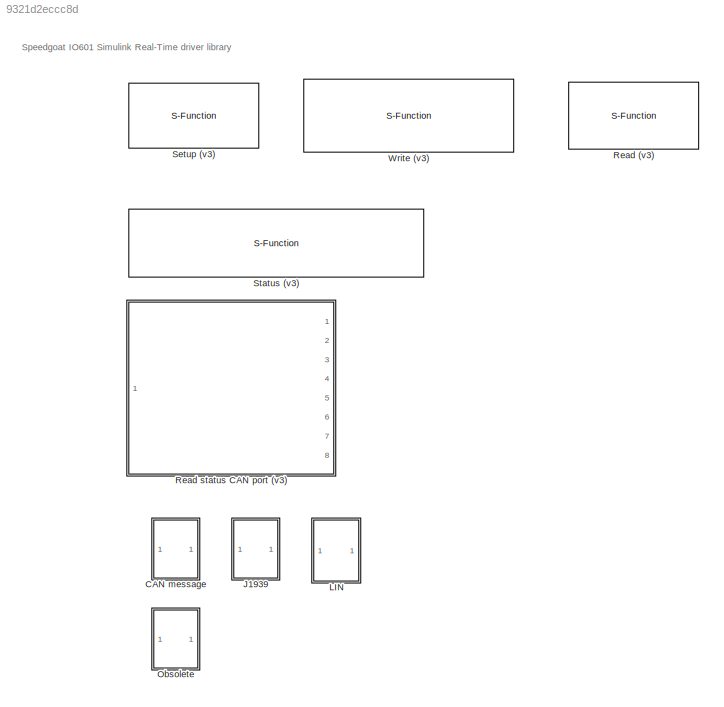
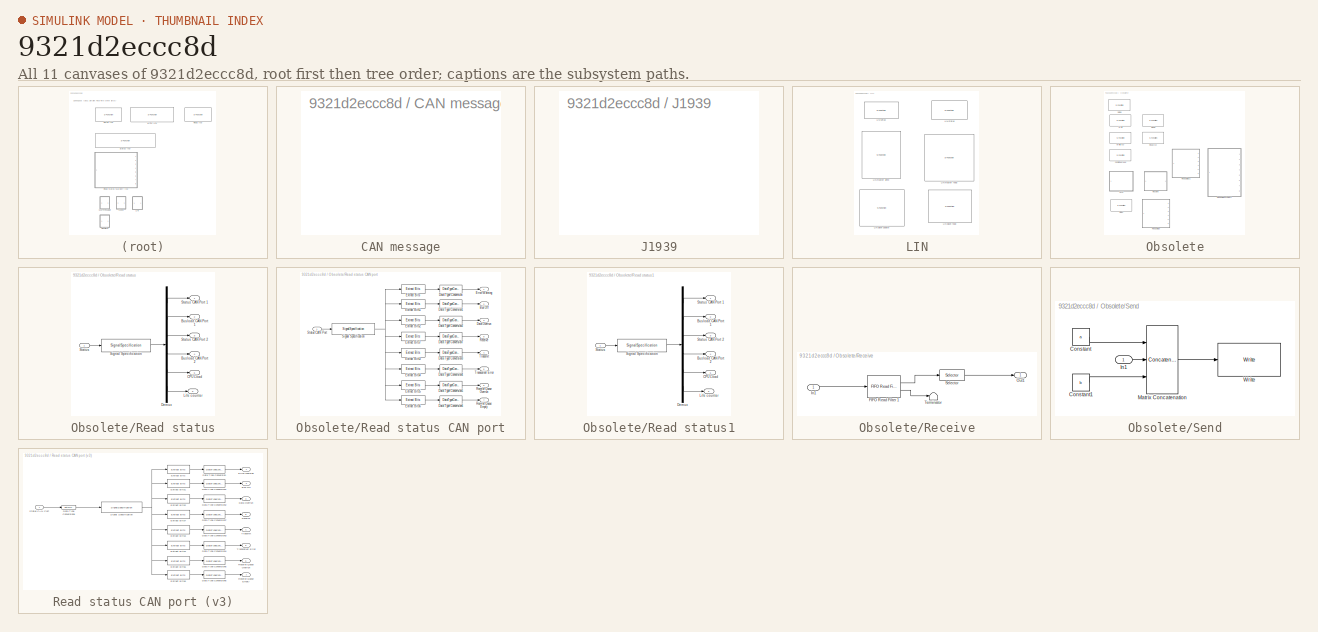
[diagram: thumbnail index - all 11 canvases of the model, root first then tree order]
MODEL slx_9321d2eccc8d
KIND library
BLOCK [SubSystem] CAN message
  FunctionWithSeparateData = off
  MaskHideContents = off
  MinAlgLoopOccurrences = off
  Opaque = off
  OpenFcn = canmsglib
  Ports = []
  PropExecContextOutsideSubsystem = off
  RTWSystemCode = Auto
  RequestExecContextInheritance = off
BLOCK [SubSystem] J1939
  FunctionWithSeparateData = off
  MaskHideContents = off
  MinAlgLoopOccurrences = off
  Opaque = off
  OpenFcn = xpcJ1939lib
  Ports = []
  PropExecContextOutsideSubsystem = off
  RTWSystemCode = Auto
  RequestExecContextInheritance = off
BLOCK [SubSystem] LIN
  FunctionWithSeparateData = off
  MaskHideContents = off
  MinAlgLoopOccurrences = off
  Opaque = off
  Ports = []
  PropExecContextOutsideSubsystem = off
  RTWSystemCode = Auto
  RequestExecContextInheritance = off
BLOCK [S-Function] LIN/LIN master read
  EnableBusSupport = off
  FunctionName = sg_IO601_linmasterread_s
  InitFcn = sg_IO601_linmasterread_m(1);
  Parameters = id, nbMessages, ts, pciSlot
  Ports = [2, 14]
BLOCK [S-Function] LIN/LIN master write
  EnableBusSupport = off
  FunctionName = sg_IO601_linmasterwrite_s
  InitFcn = sg_IO601_linmasterwrite_m(1);
  Parameters = id, nbMessages, ts, pciSlot
  Ports = [11]
BLOCK [S-Function] LIN/LIN setup
  EnableBusSupport = off
  FunctionName = sg_IO601_setuplin_s
  InitFcn = sg_IO601_setuplin_m(1);
  Parameters = id, baudRate, role, pciSlot
  Ports = []
BLOCK [S-Function] LIN/LIN slave read
  EnableBusSupport = off
  FunctionName = sg_IO601_linslaveread_s
  InitFcn = sg_IO601_linslaveread_m(1);
  Parameters = id, nbMessages, ts, pciSlot
  Ports = [0, 13]
BLOCK [S-Function] LIN/LIN slave update
  EnableBusSupport = off
  FunctionName = sg_IO601_linslavewrite_s
  InitFcn = sg_IO601_linslavewrite_m(1);
  Parameters = id, nbMessages, ts, pciSlot
  Ports = [10]
BLOCK [S-Function] LIN/LIN status
  EnableBusSupport = off
  FunctionName = sg_IO601_statuslin_s
  InitFcn = sg_IO601_statuslin_m(1);
  Parameters = ts, pciSlot
  Ports = [0, 4]
BLOCK [SubSystem] Obsolete
  FunctionWithSeparateData = off
  MaskHideContents = off
  MinAlgLoopOccurrences = off
  Opaque = off
  Ports = []
  PropExecContextOutsideSubsystem = off
  RTWSystemCode = Auto
  RequestExecContextInheritance = off
BLOCK [S-Function] Obsolete/Combined read
  EnableBusSupport = off
  FunctionName = sg_IO601_cread_s
  InitFcn = sg_IO601_cread_m(1);
  Parameters = id, depth, status, sampletime, pciSlot
  Ports = [0, 1]
BLOCK [S-Function] Obsolete/Read
  EnableBusSupport = off
  FunctionName = sg_IO601_read_s
  InitFcn = sg_IO601_read_m(1);
  Parameters = id, port, depth, status, sampletime, pciSlot
  Ports = [0, 1]
BLOCK [S-Function] Obsolete/Read (v2)
  EnableBusSupport = off
  FunctionName = sg_IO601_read2_s
  InitFcn = sg_IO601_read_m(1);
  Parameters = id, port, depth, outputFormat, status, sampletime, pciSlot
  Ports = [0, 2]
BLOCK [SubSystem] Obsolete/Read status
  FunctionWithSeparateData = off
  MaskHideContents = off
  MinAlgLoopOccurrences = off
  Opaque = off
  Ports = [1, 6]
  PropExecContextOutsideSubsystem = off
  RTWSystemCode = Auto
  RequestExecContextInheritance = off
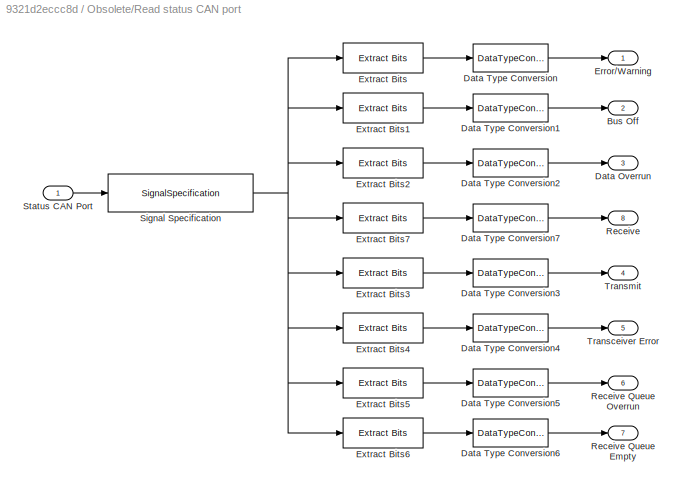
BLOCK [SubSystem] Obsolete/Read status CAN port
  FunctionWithSeparateData = off
  MaskHideContents = off
  MinAlgLoopOccurrences = off
  Opaque = off
  Ports = [1, 8]
  PropExecContextOutsideSubsystem = off
  RTWSystemCode = Auto
  RequestExecContextInheritance = off
BLOCK [Outport] Obsolete/Read status CAN port/Bus Off
  IconDisplay = Port number
  Port = 2
BLOCK [Outport] Obsolete/Read status CAN port/Data Overrun
  IconDisplay = Port number
  Port = 3
BLOCK [DataTypeConversion] Obsolete/Read status CAN port/Data Type Conversion
  OutDataTypeStr = boolean
  RndMeth = Floor
  SaturateOnIntegerOverflow = off
BLOCK [DataTypeConversion] Obsolete/Read status CAN port/Data Type Conversion1
  OutDataTypeStr = boolean
  RndMeth = Floor
  SaturateOnIntegerOverflow = off
BLOCK [DataTypeConversion] Obsolete/Read status CAN port/Data Type Conversion2
  OutDataTypeStr = boolean
  RndMeth = Floor
  SaturateOnIntegerOverflow = off
BLOCK [DataTypeConversion] Obsolete/Read status CAN port/Data Type Conversion3
  OutDataTypeStr = boolean
  RndMeth = Floor
  SaturateOnIntegerOverflow = off
BLOCK [DataTypeConversion] Obsolete/Read status CAN port/Data Type Conversion4
  OutDataTypeStr = boolean
  RndMeth = Floor
  SaturateOnIntegerOverflow = off
BLOCK [DataTypeConversion] Obsolete/Read status CAN port/Data Type Conversion5
  OutDataTypeStr = boolean
  RndMeth = Floor
  SaturateOnIntegerOverflow = off
BLOCK [DataTypeConversion] Obsolete/Read status CAN port/Data Type Conversion6
  OutDataTypeStr = boolean
  RndMeth = Floor
  SaturateOnIntegerOverflow = off
BLOCK [DataTypeConversion] Obsolete/Read status CAN port/Data Type Conversion7
  OutDataTypeStr = boolean
  RndMeth = Floor
  SaturateOnIntegerOverflow = off
BLOCK [Outport] Obsolete/Read status CAN port/Error//Warning
  IconDisplay = Port number
BLOCK [Reference] Obsolete/Read status CAN port/Extract Bits  REF=simulink/Logic and Bit
Operations/Extract Bits
  Ports = [1, 1]
  SourceBlock = simulink/Logic and Bit\nOperations/Extract Bits
  SourceType = Extract Bits
  bitIdxRange = [1]
  bitsToExtract = Range of bits
  numBits = 8
  outScalingMode = Preserve fixed-point scaling
BLOCK [Reference] Obsolete/Read status CAN port/Extract Bits1  REF=simulink/Logic and Bit
Operations/Extract Bits
  Ports = [1, 1]
  SourceBlock = simulink/Logic and Bit\nOperations/Extract Bits
  SourceType = Extract Bits
  bitIdxRange = [2]
  bitsToExtract = Range of bits
  numBits = 8
  outScalingMode = Preserve fixed-point scaling
BLOCK [Reference] Obsolete/Read status CAN port/Extract Bits2  REF=simulink/Logic and Bit
Operations/Extract Bits
  Ports = [1, 1]
  SourceBlock = simulink/Logic and Bit\nOperations/Extract Bits
  SourceType = Extract Bits
  bitIdxRange = [3]
  bitsToExtract = Range of bits
  numBits = 8
  outScalingMode = Preserve fixed-point scaling
BLOCK [Reference] Obsolete/Read status CAN port/Extract Bits3  REF=simulink/Logic and Bit
Operations/Extract Bits
  Ports = [1, 1]
  SourceBlock = simulink/Logic and Bit\nOperations/Extract Bits
  SourceType = Extract Bits
  bitIdxRange = [5]
  bitsToExtract = Range of bits
  numBits = 8
  outScalingMode = Preserve fixed-point scaling
BLOCK [Reference] Obsolete/Read status CAN port/Extract Bits4  REF=simulink/Logic and Bit
Operations/Extract Bits
  Ports = [1, 1]
  SourceBlock = simulink/Logic and Bit\nOperations/Extract Bits
  SourceType = Extract Bits
  bitIdxRange = [6]
  bitsToExtract = Range of bits
  numBits = 8
  outScalingMode = Preserve fixed-point scaling
BLOCK [Reference] Obsolete/Read status CAN port/Extract Bits5  REF=simulink/Logic and Bit
Operations/Extract Bits
  Ports = [1, 1]
  SourceBlock = simulink/Logic and Bit\nOperations/Extract Bits
  SourceType = Extract Bits
  bitIdxRange = [8]
  bitsToExtract = Range of bits
  numBits = 8
  outScalingMode = Preserve fixed-point scaling
BLOCK [Reference] Obsolete/Read status CAN port/Extract Bits6  REF=simulink/Logic and Bit
Operations/Extract Bits
  Ports = [1, 1]
  SourceBlock = simulink/Logic and Bit\nOperations/Extract Bits
  SourceType = Extract Bits
  bitIdxRange = [9]
  bitsToExtract = Range of bits
  numBits = 8
  outScalingMode = Preserve fixed-point scaling
BLOCK [Reference] Obsolete/Read status CAN port/Extract Bits7  REF=simulink/Logic and Bit
Operations/Extract Bits
  Ports = [1, 1]
  SourceBlock = simulink/Logic and Bit\nOperations/Extract Bits
  SourceType = Extract Bits
  bitIdxRange = [4]
  bitsToExtract = Range of bits
  numBits = 8
  outScalingMode = Preserve fixed-point scaling
BLOCK [Outport] Obsolete/Read status CAN port/Receive
  IconDisplay = Port number
  Port = 8
BLOCK [Outport] Obsolete/Read status CAN port/Receive Queue Empty
  IconDisplay = Port number
  Port = 7
BLOCK [Outport] Obsolete/Read status CAN port/Receive Queue Overrun
  IconDisplay = Port number
  Port = 6
BLOCK [SignalSpecification] Obsolete/Read status CAN port/Signal Specification
  Dimensions = 1
  OutDataTypeStr = uint16
  SignalType = real
BLOCK [Inport] Obsolete/Read status CAN port/Status CAN Port
  IconDisplay = Port number
BLOCK [Outport] Obsolete/Read status CAN port/Transceiver Error
  IconDisplay = Port number
  Port = 5
BLOCK [Outport] Obsolete/Read status CAN port/Transmit
  IconDisplay = Port number
  Port = 4
BLOCK [Outport] Obsolete/Read status/Busload CAN Port 1
  IconDisplay = Port number
  Port = 2
BLOCK [Outport] Obsolete/Read status/Busload CAN Port 2
  IconDisplay = Port number
  Port = 4
BLOCK [Outport] Obsolete/Read status/CPU Load
  IconDisplay = Port number
  Port = 5
BLOCK [Demux] Obsolete/Read status/Demux
  DisplayOption = bar
  Outputs = 6
  Ports = [1, 6]
BLOCK [Outport] Obsolete/Read status/Life counter
  IconDisplay = Port number
  Port = 6
BLOCK [SignalSpecification] Obsolete/Read status/Signal Specification
  Dimensions = 6
  OutDataTypeStr = uint16
  SignalType = real
BLOCK [Inport] Obsolete/Read status/Status
  IconDisplay = Port number
BLOCK [Outport] Obsolete/Read status/Status CAN Port 1
  IconDisplay = Port number
BLOCK [Outport] Obsolete/Read status/Status CAN Port 2
  IconDisplay = Port number
  Port = 3
BLOCK [SubSystem] Obsolete/Read status1
  FunctionWithSeparateData = off
  MaskHideContents = off
  MinAlgLoopOccurrences = off
  Opaque = off
  Ports = [1, 6]
  PropExecContextOutsideSubsystem = off
  RTWSystemCode = Auto
  RequestExecContextInheritance = off
BLOCK [Outport] Obsolete/Read status1/Busload CAN Port 1
  IconDisplay = Port number
  Port = 2
BLOCK [Outport] Obsolete/Read status1/Busload CAN Port 2
  IconDisplay = Port number
  Port = 4
BLOCK [Outport] Obsolete/Read status1/CPU Load
  IconDisplay = Port number
  Port = 5
BLOCK [Demux] Obsolete/Read status1/Demux
  DisplayOption = bar
  Outputs = 6
  Ports = [1, 6]
BLOCK [Outport] Obsolete/Read status1/Life counter
  IconDisplay = Port number
  Port = 6
BLOCK [SignalSpecification] Obsolete/Read status1/Signal Specification
  Dimensions = 6
  OutDataTypeStr = uint16
  SignalType = real
BLOCK [Inport] Obsolete/Read status1/Status
  IconDisplay = Port number
BLOCK [Outport] Obsolete/Read status1/Status CAN Port 1
  IconDisplay = Port number
BLOCK [Outport] Obsolete/Read status1/Status CAN Port 2
  IconDisplay = Port number
  Port = 3
BLOCK [SubSystem] Obsolete/Receive
  FunctionWithSeparateData = off
  InitFcn = sg_IO601_receive_m(1);
  MaskHideContents = off
  MinAlgLoopOccurrences = off
  Opaque = off
  Ports = [1, 1]
  PropExecContextOutsideSubsystem = off
  RTWSystemCode = Auto
  RequestExecContextInheritance = off
BLOCK [Reference] Obsolete/Receive/FIFO Read Filter  1  REF=xpclib/CAN/Softing/CAN-AC2-PCI
SJA 1000/FIFO Mode/FIFO Read Filter 
  Ports = [1, 2]
  SourceBlock = xpclib/CAN/Softing/CAN-AC2-PCI\nSJA 1000/FIFO Mode/FIFO Read Filter
  SourceType = canrcvfifofilter
  ctypein = SDF
  direction = Include
  ident = canId
  identsel = Include
  portin = Any
BLOCK [Inport] Obsolete/Receive/In1
  IconDisplay = Port number
BLOCK [Outport] Obsolete/Receive/Out1
  IconDisplay = Port number
BLOCK [Selector] Obsolete/Receive/Selector
  Indices = [6]
  InputPortWidth = 6
  Ports = [1, 1]
BLOCK [Terminator] Obsolete/Receive/Terminator
BLOCK [SubSystem] Obsolete/Send
  FunctionWithSeparateData = off
  InitFcn = sg_IO601_send_m(1);
  MaskHideContents = off
  MinAlgLoopOccurrences = off
  Opaque = off
  Ports = [1]
  PropExecContextOutsideSubsystem = off
  RTWSystemCode = Auto
  RequestExecContextInheritance = off
BLOCK [Constant] Obsolete/Send/Constant
  Value = a
  VectorParams1D = off
BLOCK [Constant] Obsolete/Send/Constant1
  Value = b
  VectorParams1D = off
BLOCK [Inport] Obsolete/Send/In1
  IconDisplay = Port number
  PortDimensions = 1
BLOCK [Concatenate] Obsolete/Send/Matrix Concatenation
  ConcatenateDimension = 2
  Mode = Multidimensional array
  NumInputs = 3
  Ports = [3, 1]
BLOCK [Reference] Obsolete/Send/Write  REF=speedgoatlib_IO601/Obsolete/Write
  Ports = [1]
  SourceBlock = speedgoatlib_IO601/Obsolete/Write
  SourceType = write_IO601
  id = 1
  pciSlot = 0
  sampletime = ts
  status = off
BLOCK [S-Function] Obsolete/Setup
  EnableBusSupport = off
  FunctionName = sg_IO601_setup_s
  InitFcn = sg_IO601_setup_m(1);
  Parameters = id, can1enable, can1bus, can1UserBR, acc1, filter1std, filter1ext, can2enable, can2bus, can2UserBR, acc2, filter2std, filter2ext, initarray, termarray, pciSlot
  Ports = []
BLOCK [S-Function] Obsolete/Status
  EnableBusSupport = off
  FunctionName = sg_IO601_status_s
  InitFcn = sg_IO601_status_m(1);
  Parameters = id, sampletime, pciSlot
  Ports = [0, 1]
BLOCK [S-Function] Obsolete/Write
  EnableBusSupport = off
  FunctionName = sg_IO601_write_s
  InitFcn = sg_IO601_write_m(1);
  Parameters = id, status, sampletime, pciSlot
  Ports = [1]
BLOCK [S-Function] Obsolete/Write (v2)
  EnableBusSupport = off
  FunctionName = sg_IO601_write2_s
  InitFcn = sg_IO601_write_m(1);
  Parameters = id, status, inputType, count, maxMsg, port, sampletime, pciSlot
  Ports = [2]
BLOCK [S-Function] Read (v3)
  EnableBusSupport = off
  FunctionName = sg_IO601_read_s_3
  InitFcn = sg_init_modules('IO601', false, 'setup_IO601_3');
  Parameters = depth1, depth2, outputFormat, port1, port2, sampletime, pciSlot
  Ports = [0, 4]
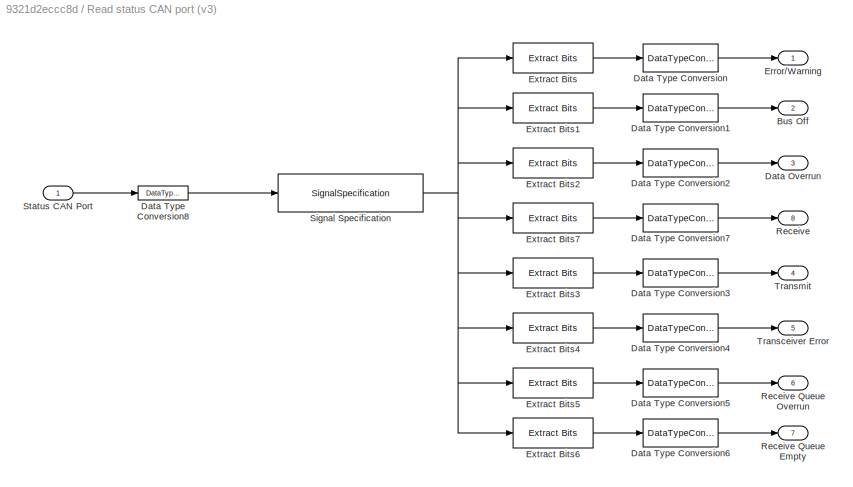
BLOCK [SubSystem] Read status CAN port (v3)
  FunctionWithSeparateData = off
  MaskHideContents = off
  MinAlgLoopOccurrences = off
  Opaque = off
  Ports = [1, 8]
  PropExecContextOutsideSubsystem = off
  RTWSystemCode = Auto
  RequestExecContextInheritance = off
BLOCK [Outport] Read status CAN port (v3)/Bus Off
  IconDisplay = Port number
  Port = 2
BLOCK [Outport] Read status CAN port (v3)/Data Overrun
  IconDisplay = Port number
  Port = 3
BLOCK [DataTypeConversion] Read status CAN port (v3)/Data Type Conversion
  OutDataTypeStr = boolean
  RndMeth = Floor
  SaturateOnIntegerOverflow = off
BLOCK [DataTypeConversion] Read status CAN port (v3)/Data Type Conversion1
  OutDataTypeStr = boolean
  RndMeth = Floor
  SaturateOnIntegerOverflow = off
BLOCK [DataTypeConversion] Read status CAN port (v3)/Data Type Conversion2
  OutDataTypeStr = boolean
  RndMeth = Floor
  SaturateOnIntegerOverflow = off
BLOCK [DataTypeConversion] Read status CAN port (v3)/Data Type Conversion3
  OutDataTypeStr = boolean
  RndMeth = Floor
  SaturateOnIntegerOverflow = off
BLOCK [DataTypeConversion] Read status CAN port (v3)/Data Type Conversion4
  OutDataTypeStr = boolean
  RndMeth = Floor
  SaturateOnIntegerOverflow = off
BLOCK [DataTypeConversion] Read status CAN port (v3)/Data Type Conversion5
  OutDataTypeStr = boolean
  RndMeth = Floor
  SaturateOnIntegerOverflow = off
BLOCK [DataTypeConversion] Read status CAN port (v3)/Data Type Conversion6
  OutDataTypeStr = boolean
  RndMeth = Floor
  SaturateOnIntegerOverflow = off
BLOCK [DataTypeConversion] Read status CAN port (v3)/Data Type Conversion7
  OutDataTypeStr = boolean
  RndMeth = Floor
  SaturateOnIntegerOverflow = off
BLOCK [DataTypeConversion] Read status CAN port (v3)/Data Type Conversion8
  RndMeth = Floor
  SaturateOnIntegerOverflow = off
BLOCK [Outport] Read status CAN port (v3)/Error//Warning
  IconDisplay = Port number
BLOCK [Reference] Read status CAN port (v3)/Extract Bits  REF=simulink/Logic and Bit
Operations/Extract Bits
  Ports = [1, 1]
  SourceBlock = simulink/Logic and Bit\nOperations/Extract Bits
  SourceType = Extract Bits
  bitIdxRange = [1]
  bitsToExtract = Range of bits
  numBits = 8
  outScalingMode = Preserve fixed-point scaling
BLOCK [Reference] Read status CAN port (v3)/Extract Bits1  REF=simulink/Logic and Bit
Operations/Extract Bits
  Ports = [1, 1]
  SourceBlock = simulink/Logic and Bit\nOperations/Extract Bits
  SourceType = Extract Bits
  bitIdxRange = [2]
  bitsToExtract = Range of bits
  numBits = 8
  outScalingMode = Preserve fixed-point scaling
BLOCK [Reference] Read status CAN port (v3)/Extract Bits2  REF=simulink/Logic and Bit
Operations/Extract Bits
  Ports = [1, 1]
  SourceBlock = simulink/Logic and Bit\nOperations/Extract Bits
  SourceType = Extract Bits
  bitIdxRange = [3]
  bitsToExtract = Range of bits
  numBits = 8
  outScalingMode = Preserve fixed-point scaling
BLOCK [Reference] Read status CAN port (v3)/Extract Bits3  REF=simulink/Logic and Bit
Operations/Extract Bits
  Ports = [1, 1]
  SourceBlock = simulink/Logic and Bit\nOperations/Extract Bits
  SourceType = Extract Bits
  bitIdxRange = [5]
  bitsToExtract = Range of bits
  numBits = 8
  outScalingMode = Preserve fixed-point scaling
BLOCK [Reference] Read status CAN port (v3)/Extract Bits4  REF=simulink/Logic and Bit
Operations/Extract Bits
  Ports = [1, 1]
  SourceBlock = simulink/Logic and Bit\nOperations/Extract Bits
  SourceType = Extract Bits
  bitIdxRange = [6]
  bitsToExtract = Range of bits
  numBits = 8
  outScalingMode = Preserve fixed-point scaling
BLOCK [Reference] Read status CAN port (v3)/Extract Bits5  REF=simulink/Logic and Bit
Operations/Extract Bits
  Ports = [1, 1]
  SourceBlock = simulink/Logic and Bit\nOperations/Extract Bits
  SourceType = Extract Bits
  bitIdxRange = [8]
  bitsToExtract = Range of bits
  numBits = 8
  outScalingMode = Preserve fixed-point scaling
BLOCK [Reference] Read status CAN port (v3)/Extract Bits6  REF=simulink/Logic and Bit
Operations/Extract Bits
  Ports = [1, 1]
  SourceBlock = simulink/Logic and Bit\nOperations/Extract Bits
  SourceType = Extract Bits
  bitIdxRange = [9]
  bitsToExtract = Range of bits
  numBits = 8
  outScalingMode = Preserve fixed-point scaling
BLOCK [Reference] Read status CAN port (v3)/Extract Bits7  REF=simulink/Logic and Bit
Operations/Extract Bits
  Ports = [1, 1]
  SourceBlock = simulink/Logic and Bit\nOperations/Extract Bits
  SourceType = Extract Bits
  bitIdxRange = [4]
  bitsToExtract = Range of bits
  numBits = 8
  outScalingMode = Preserve fixed-point scaling
BLOCK [Outport] Read status CAN port (v3)/Receive
  IconDisplay = Port number
  Port = 8
BLOCK [Outport] Read status CAN port (v3)/Receive Queue Empty
  IconDisplay = Port number
  Port = 7
BLOCK [Outport] Read status CAN port (v3)/Receive Queue Overrun
  IconDisplay = Port number
  Port = 6
BLOCK [SignalSpecification] Read status CAN port (v3)/Signal Specification
  Dimensions = 1
  OutDataTypeStr = uint16
  SignalType = real
BLOCK [Inport] Read status CAN port (v3)/Status CAN Port
  IconDisplay = Port number
BLOCK [Outport] Read status CAN port (v3)/Transceiver Error
  IconDisplay = Port number
  Port = 5
BLOCK [Outport] Read status CAN port (v3)/Transmit
  IconDisplay = Port number
  Port = 4
BLOCK [S-Function] Setup (v3)
  EnableBusSupport = off
  FunctionName = sg_IO601_setup_s_3
  InitFcn = sg_init_modules('IO601', true, '');
  Parameters = can1enable, can1bus, can1UserBR, stdAcc1, extAcc1, can2enable, can2bus, can2UserBR, stdAcc2, extAcc2, pciSlot
  Ports = []
BLOCK [S-Function] Status (v3)
  EnableBusSupport = off
  FunctionName = sg_IO601_status_s_3
  InitFcn = sg_init_modules('IO601', false, 'setup_IO601_3');
  Parameters = ts, pciSlot
  Ports = [0, 6]
BLOCK [S-Function] Write (v3)
  EnableBusSupport = off
  FunctionName = sg_IO601_write_s_3
  InitFcn = sg_init_modules('IO601', false, 'setup_IO601_3');
  Parameters = id, status, inputType, maxMsg, port, initarray, termarray, sampletime, pciSlot
  Ports = [2]
  Priority = 1
ANNOTATION (root): Speedgoat IO601 Simulink Real-Time driver library
LINE Obsolete/Read status CAN port/Data Type Conversion1:1 -> Obsolete/Read status CAN port/Bus Off:1
LINE Obsolete/Read status CAN port/Data Type Conversion2:1 -> Obsolete/Read status CAN port/Data Overrun:1
LINE Obsolete/Read status CAN port/Data Type Conversion3:1 -> Obsolete/Read status CAN port/Transmit:1
LINE Obsolete/Read status CAN port/Data Type Conversion4:1 -> Obsolete/Read status CAN port/Transceiver Error:1
LINE Obsolete/Read status CAN port/Data Type Conversion5:1 -> Obsolete/Read status CAN port/Receive Queue Overrun:1
LINE Obsolete/Read status CAN port/Data Type Conversion6:1 -> Obsolete/Read status CAN port/Receive Queue Empty:1
LINE Obsolete/Read status CAN port/Data Type Conversion7:1 -> Obsolete/Read status CAN port/Receive:1
LINE Obsolete/Read status CAN port/Data Type Conversion:1 -> Obsolete/Read status CAN port/Error//Warning:1
LINE Obsolete/Read status CAN port/Extract Bits1:1 -> Obsolete/Read status CAN port/Data Type Conversion1:1
LINE Obsolete/Read status CAN port/Extract Bits2:1 -> Obsolete/Read status CAN port/Data Type Conversion2:1
LINE Obsolete/Read status CAN port/Extract Bits3:1 -> Obsolete/Read status CAN port/Data Type Conversion3:1
LINE Obsolete/Read status CAN port/Extract Bits4:1 -> Obsolete/Read status CAN port/Data Type Conversion4:1
LINE Obsolete/Read status CAN port/Extract Bits5:1 -> Obsolete/Read status CAN port/Data Type Conversion5:1
LINE Obsolete/Read status CAN port/Extract Bits6:1 -> Obsolete/Read status CAN port/Data Type Conversion6:1
LINE Obsolete/Read status CAN port/Extract Bits7:1 -> Obsolete/Read status CAN port/Data Type Conversion7:1
LINE Obsolete/Read status CAN port/Extract Bits:1 -> Obsolete/Read status CAN port/Data Type Conversion:1
NET Obsolete/Read status CAN port/Signal Specification:1 -> Obsolete/Read status CAN port/Extract Bits1:1, Obsolete/Read status CAN port/Extract Bits2:1, Obsolete/Read status CAN port/Extract Bits3:1, Obsolete/Read status CAN port/Extract Bits4:1, Obsolete/Read status CAN port/Extract Bits5:1, Obsolete/Read status CAN port/Extract Bits6:1, Obsolete/Read status CAN port/Extract Bits7:1, Obsolete/Read status CAN port/Extract Bits:1
LINE Obsolete/Read status CAN port/Status CAN Port:1 -> Obsolete/Read status CAN port/Signal Specification:1
LINE Obsolete/Read status/Demux:1 -> Obsolete/Read status/Status CAN Port 1:1
LINE Obsolete/Read status/Demux:2 -> Obsolete/Read status/Busload CAN Port 1:1
LINE Obsolete/Read status/Demux:3 -> Obsolete/Read status/Status CAN Port 2:1
LINE Obsolete/Read status/Demux:4 -> Obsolete/Read status/Busload CAN Port 2:1
LINE Obsolete/Read status/Demux:5 -> Obsolete/Read status/CPU Load:1
LINE Obsolete/Read status/Demux:6 -> Obsolete/Read status/Life counter:1
LINE Obsolete/Read status/Signal Specification:1 -> Obsolete/Read status/Demux:1
LINE Obsolete/Read status/Status:1 -> Obsolete/Read status/Signal Specification:1
LINE Obsolete/Read status1/Demux:1 -> Obsolete/Read status1/Status CAN Port 1:1
LINE Obsolete/Read status1/Demux:2 -> Obsolete/Read status1/Busload CAN Port 1:1
LINE Obsolete/Read status1/Demux:3 -> Obsolete/Read status1/Status CAN Port 2:1
LINE Obsolete/Read status1/Demux:4 -> Obsolete/Read status1/Busload CAN Port 2:1
LINE Obsolete/Read status1/Demux:5 -> Obsolete/Read status1/CPU Load:1
LINE Obsolete/Read status1/Demux:6 -> Obsolete/Read status1/Life counter:1
LINE Obsolete/Read status1/Signal Specification:1 -> Obsolete/Read status1/Demux:1
LINE Obsolete/Read status1/Status:1 -> Obsolete/Read status1/Signal Specification:1
LINE Read status CAN port (v3)/Data Type Conversion1:1 -> Read status CAN port (v3)/Bus Off:1
LINE Read status CAN port (v3)/Data Type Conversion2:1 -> Read status CAN port (v3)/Data Overrun:1
LINE Read status CAN port (v3)/Data Type Conversion3:1 -> Read status CAN port (v3)/Transmit:1
LINE Read status CAN port (v3)/Data Type Conversion4:1 -> Read status CAN port (v3)/Transceiver Error:1
LINE Read status CAN port (v3)/Data Type Conversion5:1 -> Read status CAN port (v3)/Receive Queue Overrun:1
LINE Read status CAN port (v3)/Data Type Conversion6:1 -> Read status CAN port (v3)/Receive Queue Empty:1
LINE Read status CAN port (v3)/Data Type Conversion7:1 -> Read status CAN port (v3)/Receive:1
LINE Read status CAN port (v3)/Data Type Conversion8:1 -> Read status CAN port (v3)/Signal Specification:1
LINE Read status CAN port (v3)/Data Type Conversion:1 -> Read status CAN port (v3)/Error//Warning:1
LINE Read status CAN port (v3)/Extract Bits1:1 -> Read status CAN port (v3)/Data Type Conversion1:1
LINE Read status CAN port (v3)/Extract Bits2:1 -> Read status CAN port (v3)/Data Type Conversion2:1
LINE Read status CAN port (v3)/Extract Bits3:1 -> Read status CAN port (v3)/Data Type Conversion3:1
LINE Read status CAN port (v3)/Extract Bits4:1 -> Read status CAN port (v3)/Data Type Conversion4:1
LINE Read status CAN port (v3)/Extract Bits5:1 -> Read status CAN port (v3)/Data Type Conversion5:1
LINE Read status CAN port (v3)/Extract Bits6:1 -> Read status CAN port (v3)/Data Type Conversion6:1
LINE Read status CAN port (v3)/Extract Bits7:1 -> Read status CAN port (v3)/Data Type Conversion7:1
LINE Read status CAN port (v3)/Extract Bits:1 -> Read status CAN port (v3)/Data Type Conversion:1
NET Read status CAN port (v3)/Signal Specification:1 -> Read status CAN port (v3)/Extract Bits1:1, Read status CAN port (v3)/Extract Bits2:1, Read status CAN port (v3)/Extract Bits3:1, Read status CAN port (v3)/Extract Bits4:1, Read status CAN port (v3)/Extract Bits5:1, Read status CAN port (v3)/Extract Bits6:1, Read status CAN port (v3)/Extract Bits7:1, Read status CAN port (v3)/Extract Bits:1
LINE Read status CAN port (v3)/Status CAN Port:1 -> Read status CAN port (v3)/Data Type Conversion8:1
note: NET lines group one-source signal fan-out (src -> all destinations, sorted); 1:1 wires keep LINE
